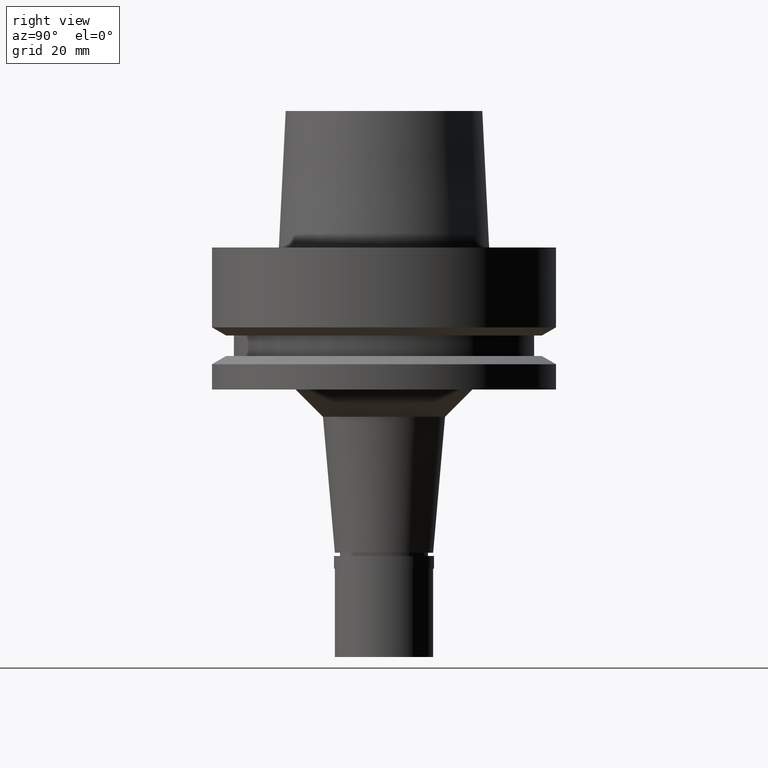
[diagram: clean part render]
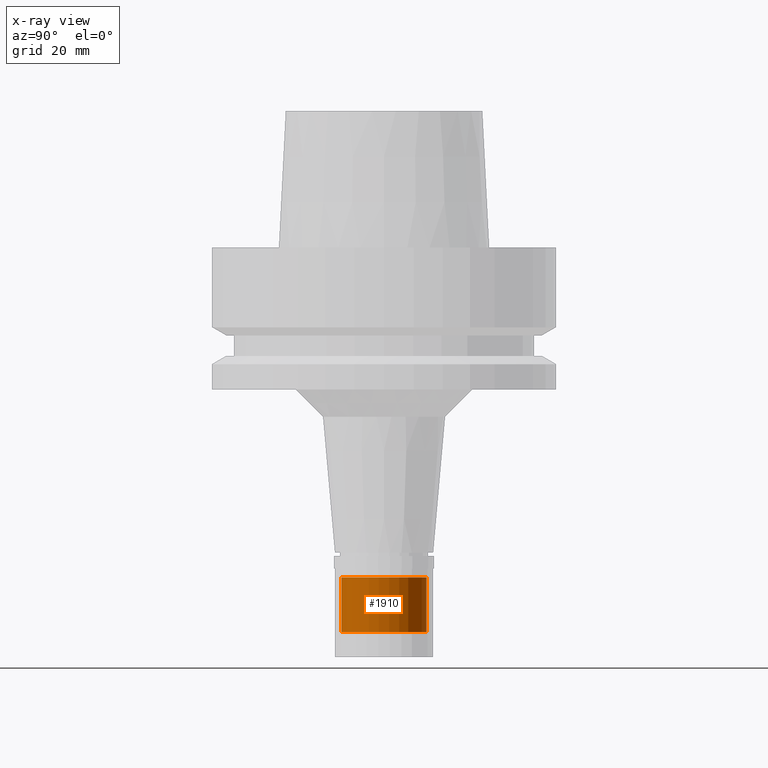
[diagram: x-ray — body ghosted, one internal face saturated and labeled with its STEP entity id]
A machine part, right view, then the same camera in x-ray: the body is ghosted and one INTERNAL B-rep face — a face not visible from any outside direction — is saturated and labeled: STEP entity #1910.
In plain terms, the highlighted cylindrical surface (partial cylindrical patch) has radius 7.8 mm, axis along (0, 0, -1).
Its self-contained STEP definition (entity closure, byte-faithful):
#22 = DIRECTION ( 'NONE',  ( 0.0000000000000000000, 0.0000000000000000000, -1.000000000000000000 ) ) ;
#23 = VERTEX_POINT ( 'NONE', #1390 ) ;
#88 = VERTEX_POINT ( 'NONE', #1944 ) ;
#109 = ORIENTED_EDGE ( 'NONE', *, *, #857, .T. ) ;
#132 = AXIS2_PLACEMENT_3D ( 'NONE', #2182, #1761, #2242 ) ;
#134 = AXIS2_PLACEMENT_3D ( 'NONE', #668, #2508, #424 ) ;
#244 = CARTESIAN_POINT ( 'NONE',  ( 0.0000000000000000000, -7.799999999999999822, -70.40000000000000568 ) ) ;
#249 = CARTESIAN_POINT ( 'NONE',  ( 0.0000000000000000000, -7.799999999999999822, -60.40000000000000568 ) ) ;
#391 = AXIS2_PLACEMENT_3D ( 'NONE', #1512, #2365, #901 ) ;
#409 = EDGE_LOOP ( 'NONE', ( #109, #744, #1411, #1269 ) ) ;
#424 = DIRECTION ( 'NONE',  ( 0.0000000000000000000, -1.000000000000000000, 0.0000000000000000000 ) ) ;
#668 = CARTESIAN_POINT ( 'NONE',  ( 0.0000000000000000000, 1.589224151253999740E-14, -70.40000000000000568 ) ) ;
#744 = ORIENTED_EDGE ( 'NONE', *, *, #1380, .T. ) ;
#814 = CARTESIAN_POINT ( 'NONE',  ( 0.0000000000000000000, 7.799999999999999822, -60.40000000000000568 ) ) ;
#857 = EDGE_CURVE ( 'NONE', #1132, #88, #1032, .T. ) ;
#901 = DIRECTION ( 'NONE',  ( 0.0000000000000000000, -1.000000000000000000, 0.0000000000000000000 ) ) ;
#986 = CARTESIAN_POINT ( 'NONE',  ( 0.0000000000000000000, 7.799999999999999822, -60.40000000000000568 ) ) ;
#1032 = CIRCLE ( 'NONE', #132, 7.799999999999999822 ) ;
#1132 = VERTEX_POINT ( 'NONE', #814 ) ;
#1140 = EDGE_CURVE ( 'NONE', #1132, #23, #1850, .T. ) ;
#1206 = DIRECTION ( 'NONE',  ( 0.0000000000000000000, 0.0000000000000000000, -1.000000000000000000 ) ) ;
#1210 = VECTOR ( 'NONE', #1206, 1000.000000000000000 ) ;
#1269 = ORIENTED_EDGE ( 'NONE', *, *, #1140, .F. ) ;
#1317 = EDGE_CURVE ( 'NONE', #1728, #23, #1607, .T. ) ;
#1380 = EDGE_CURVE ( 'NONE', #88, #1728, #1880, .T. ) ;
#1390 = CARTESIAN_POINT ( 'NONE',  ( 0.0000000000000000000, 7.799999999999999822, -70.40000000000000568 ) ) ;
#1411 = ORIENTED_EDGE ( 'NONE', *, *, #1317, .T. ) ;
#1512 = CARTESIAN_POINT ( 'NONE',  ( 0.0000000000000000000, 1.589224151253999740E-14, 29.76999999999999957 ) ) ;
#1577 = FACE_OUTER_BOUND ( 'NONE', #409, .T. ) ;
#1607 = CIRCLE ( 'NONE', #134, 7.799999999999999822 ) ;
#1728 = VERTEX_POINT ( 'NONE', #244 ) ;
#1761 = DIRECTION ( 'NONE',  ( 0.0000000000000000000, 0.0000000000000000000, -1.000000000000000000 ) ) ;
#1850 = LINE ( 'NONE', #986, #1210 ) ;
#1880 = LINE ( 'NONE', #249, #2175 ) ;
#1910 = ADVANCED_FACE ( 'NONE', ( #1577 ), #2155, .T. ) ;
#1944 = CARTESIAN_POINT ( 'NONE',  ( 0.0000000000000000000, -7.799999999999999822, -60.40000000000000568 ) ) ;
#2155 = CYLINDRICAL_SURFACE ( 'NONE', #391, 7.799999999999999822 ) ;
#2175 = VECTOR ( 'NONE', #22, 1000.000000000000000 ) ;
#2182 = CARTESIAN_POINT ( 'NONE',  ( 0.0000000000000000000, 1.589224151253999740E-14, -60.40000000000000568 ) ) ;
#2242 = DIRECTION ( 'NONE',  ( 0.0000000000000000000, 1.000000000000000000, 0.0000000000000000000 ) ) ;
#2365 = DIRECTION ( 'NONE',  ( 0.0000000000000000000, 0.0000000000000000000, -1.000000000000000000 ) ) ;
#2508 = DIRECTION ( 'NONE',  ( 0.0000000000000000000, 0.0000000000000000000, 1.000000000000000000 ) ) ;